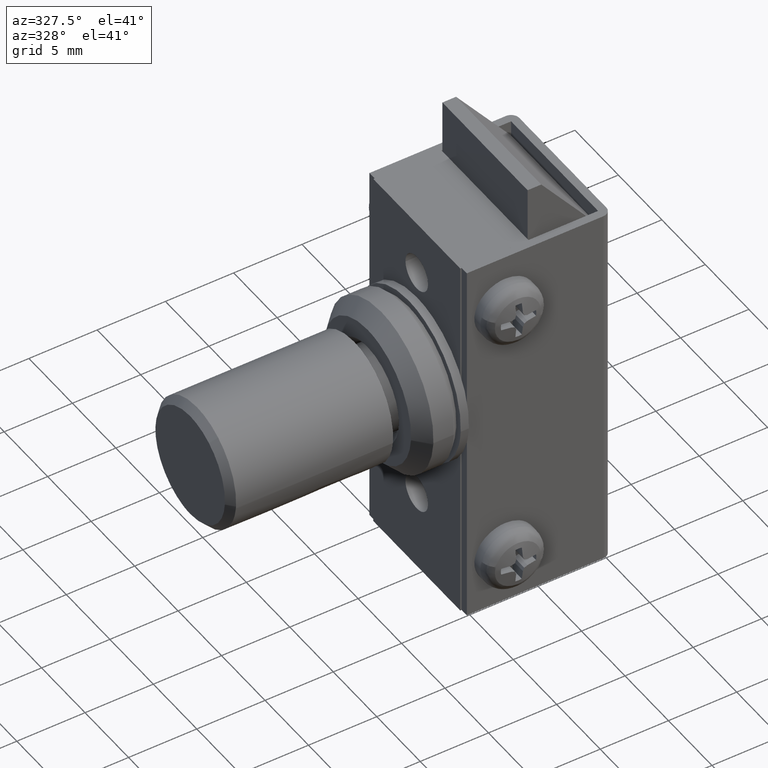
[diagram: clean part render]
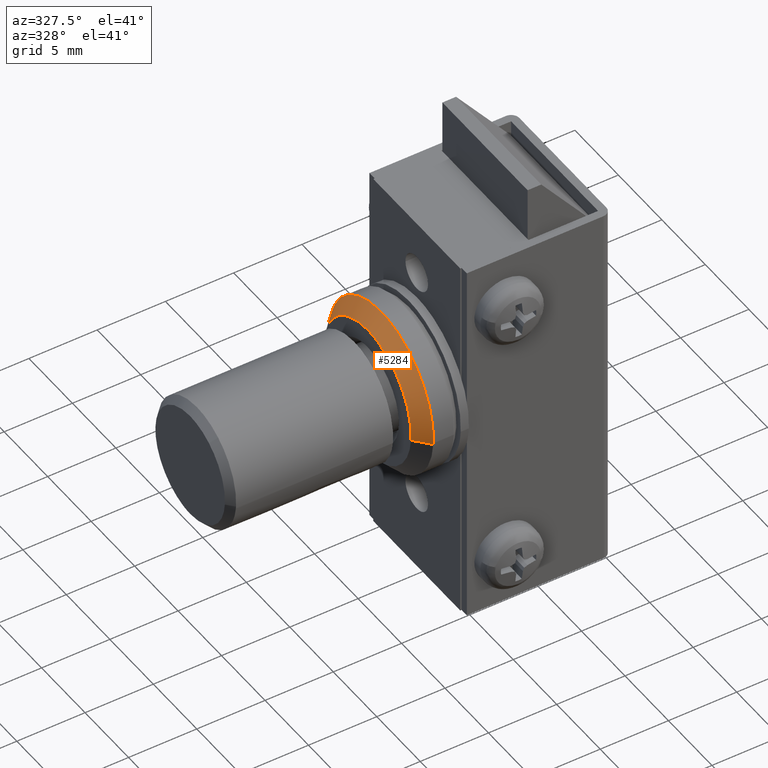
[diagram: same view with one face highlighted and labeled with its STEP entity id]
A machine part, auxiliary view. The second image highlights one B-rep face of the part: STEP entity #5284.
In plain terms, the highlighted face is a freeform B-spline surface patch.
Its self-contained STEP definition (entity closure, byte-faithful):
#5171=CARTESIAN_POINT('',(-14.124987750000111,4.959633080114090,16.390331588628818));
#5172=CARTESIAN_POINT('',(-14.124987750000107,4.569301491485268,21.349964668742921));
#5173=CARTESIAN_POINT('',(-14.124987750000111,-0.390331588628822,20.959633080114092));
#5174=CARTESIAN_POINT('',(-14.124987750000107,-5.349964668742913,20.569301491485266));
#5175=CARTESIAN_POINT('',(-14.124987750000111,-4.959633080114090,15.609668411371180));
#5176=CARTESIAN_POINT('',(-13.074331231249900,6.007050775455881,16.472765149010531));
#5177=CARTESIAN_POINT('',(-13.074331231249895,5.534285626445352,22.479815924466415));
#5178=CARTESIAN_POINT('',(-13.074331231249900,-0.472765149010530,22.007050775455880));
#5179=CARTESIAN_POINT('',(-13.074331231249895,-6.479815924466410,21.534285626445353));
#5180=CARTESIAN_POINT('',(-13.074331231249900,-6.007050775455881,15.527234850989471));
#5188=(BOUNDED_SURFACE()B_SPLINE_SURFACE(2,1,((#5171,#5176),(#5172,#5177),(#5173,#5178),(#5174,#5179),(#5175,#5180)),.UNSPECIFIED.,.F.,.F.,.U.)B_SPLINE_SURFACE_WITH_KNOTS((3,2,3),(2,2),(0.0,9.983583660804232,19.967167321608461),(0.0,1.0),.UNSPECIFIED.)GEOMETRIC_REPRESENTATION_ITEM()RATIONAL_B_SPLINE_SURFACE(((1.0,1.0),(0.707106781186548,0.707106781186548),(1.0,1.0),(0.707106781186548,0.707106781186548),(1.0,1.0)))REPRESENTATION_ITEM('')SURFACE());
#5189=CARTESIAN_POINT('',(-13.099956999999900,0.0,22.0));
#5190=VERTEX_POINT('',#5189);
#5191=CARTESIAN_POINT('',(-13.099956999996570,5.981504002400083,16.470754574392810));
#5192=VERTEX_POINT('',#5191);
#5193=CARTESIAN_POINT('',(-13.099956999999900,0.0,22.0));
#5194=CARTESIAN_POINT('',(-13.099956999999904,5.546342949901852,22.000000000000007));
#5195=CARTESIAN_POINT('',(-13.099956999996568,5.981504002400083,16.470754574392814));
#5203=(BOUNDED_CURVE()B_SPLINE_CURVE(2,(#5193,#5194,#5195),.UNSPECIFIED.,.F.,.U.)B_SPLINE_CURVE_WITH_KNOTS((3,3),(0.0,0.236331300631307),.UNSPECIFIED.)CURVE()GEOMETRIC_REPRESENTATION_ITEM()RATIONAL_B_SPLINE_CURVE((1.0,0.723120658606908,0.969723356168768))REPRESENTATION_ITEM(''));
#5204=EDGE_CURVE('',#5190,#5192,#5203,.T.);
#5205=ORIENTED_EDGE('',*,*,#5204,.T.);
#5206=CARTESIAN_POINT('',(-14.099986999983161,4.984556761152164,16.392293124996652));
#5207=VERTEX_POINT('',#5206);
#5208=CARTESIAN_POINT('',(-14.099986999983161,4.984556761152164,16.392293124996652));
#5209=CARTESIAN_POINT('',(-13.099956999996570,5.981504002400083,16.470754574392810));
#5210=QUASI_UNIFORM_CURVE('',1,(#5208,#5209),.UNSPECIFIED.,.F.,.U.);
#5211=EDGE_CURVE('',#5207,#5192,#5210,.T.);
#5212=ORIENTED_EDGE('',*,*,#5211,.F.);
#5213=CARTESIAN_POINT('',(-14.099987000000100,0.0,20.999969999999792));
#5214=VERTEX_POINT('',#5213);
#5215=CARTESIAN_POINT('',(-14.099987000000100,0.0,20.999969999999792));
#5216=CARTESIAN_POINT('',(-14.099987000000105,4.621924726336157,20.999969999999792));
#5217=CARTESIAN_POINT('',(-14.099986999983152,4.984556761152164,16.392293124996645));
#5225=(BOUNDED_CURVE()B_SPLINE_CURVE(2,(#5215,#5216,#5217),.UNSPECIFIED.,.F.,.U.)B_SPLINE_CURVE_WITH_KNOTS((3,3),(0.0,0.236331300623895),.UNSPECIFIED.)CURVE()GEOMETRIC_REPRESENTATION_ITEM()RATIONAL_B_SPLINE_CURVE((1.0,0.723120658615590,0.969723356153301))REPRESENTATION_ITEM(''));
#5226=EDGE_CURVE('',#5214,#5207,#5225,.T.);
#5227=ORIENTED_EDGE('',*,*,#5226,.F.);
#5228=CARTESIAN_POINT('',(-14.099986999983161,-4.984556761152164,15.607706875003350));
#5229=VERTEX_POINT('',#5228);
#5230=CARTESIAN_POINT('',(-14.099986999983152,-4.984556761152164,15.607706875003348));
#5231=CARTESIAN_POINT('',(-14.099987000000102,-4.999969999999791,15.803550643535287));
#5232=CARTESIAN_POINT('',(-14.099987000000100,-4.999969999999791,16.0));
#5233=CARTESIAN_POINT('',(-14.099987000000100,-4.999969999999790,20.999969999999795));
#5234=CARTESIAN_POINT('',(-14.099987000000100,0.0,20.999969999999792));
#5242=(BOUNDED_CURVE()B_SPLINE_CURVE(2,(#5230,#5231,#5232,#5233,#5234),.UNSPECIFIED.,.F.,.U.)B_SPLINE_CURVE_WITH_KNOTS((3,2,3),(0.736331300623895,0.750000000000000,1.0),.UNSPECIFIED.)CURVE()GEOMETRIC_REPRESENTATION_ITEM()RATIONAL_B_SPLINE_CURVE((0.969723356153301,0.983986122570957,1.0,0.707106781186548,1.0))REPRESENTATION_ITEM(''));
#5243=EDGE_CURVE('',#5229,#5214,#5242,.T.);
#5244=ORIENTED_EDGE('',*,*,#5243,.F.);
#5245=CARTESIAN_POINT('',(-13.099956999993720,-5.981504002401241,15.529245425585531));
#5246=VERTEX_POINT('',#5245);
#5247=CARTESIAN_POINT('',(-14.099986999983161,-4.984556761152164,15.607706875003350));
#5248=CARTESIAN_POINT('',(-13.099956999993720,-5.981504002401241,15.529245425585531));
#5249=QUASI_UNIFORM_CURVE('',1,(#5247,#5248),.UNSPECIFIED.,.F.,.U.);
#5250=EDGE_CURVE('',#5229,#5246,#5249,.T.);
#5251=ORIENTED_EDGE('',*,*,#5250,.T.);
#5252=CARTESIAN_POINT('',(-13.099956999999900,-5.988808790529459,15.633708762762380));
#5253=VERTEX_POINT('',#5252);
#5254=CARTESIAN_POINT('',(-13.099956999993713,-5.981504002401241,15.529245425585520));
#5255=CARTESIAN_POINT('',(-13.099956999999906,-5.985612215326053,15.581445220176322));
#5256=CARTESIAN_POINT('',(-13.099956999999906,-5.988808790529459,15.633708762762373));
#5264=(BOUNDED_CURVE()B_SPLINE_CURVE(2,(#5254,#5255,#5256),.UNSPECIFIED.,.F.,.U.)B_SPLINE_CURVE_WITH_KNOTS((3,3),(0.736331300630078,0.739332962240327),.UNSPECIFIED.)CURVE()GEOMETRIC_REPRESENTATION_ITEM()RATIONAL_B_SPLINE_CURVE((0.969723356166203,0.972855475560756,0.976072041669684))REPRESENTATION_ITEM(''));
#5265=EDGE_CURVE('',#5246,#5253,#5264,.T.);
#5266=ORIENTED_EDGE('',*,*,#5265,.T.);
#5267=CARTESIAN_POINT('',(-13.099956999999899,-5.988808790529459,15.633708762762373));
#5268=CARTESIAN_POINT('',(-13.099956999999897,-5.999999999999999,15.816683420179906));
#5269=CARTESIAN_POINT('',(-13.099956999999900,-6.0,16.0));
#5270=CARTESIAN_POINT('',(-13.099956999999902,-6.0,22.000000000000007));
#5271=CARTESIAN_POINT('',(-13.099956999999900,0.0,22.0));
#5279=(BOUNDED_CURVE()B_SPLINE_CURVE(2,(#5267,#5268,#5269,#5270,#5271),.UNSPECIFIED.,.F.,.U.)B_SPLINE_CURVE_WITH_KNOTS((3,2,3),(0.739332962240327,0.750000000000000,1.0),.UNSPECIFIED.)CURVE()GEOMETRIC_REPRESENTATION_ITEM()RATIONAL_B_SPLINE_CURVE((0.976072041669684,0.987502787901459,1.0,0.707106781186548,1.0))REPRESENTATION_ITEM(''));
#5280=EDGE_CURVE('',#5253,#5190,#5279,.T.);
#5281=ORIENTED_EDGE('',*,*,#5280,.T.);
#5282=EDGE_LOOP('',(#5205,#5212,#5227,#5244,#5251,#5266,#5281));
#5283=FACE_OUTER_BOUND('',#5282,.T.);
#5284=ADVANCED_FACE('',(#5283),#5188,.T.);